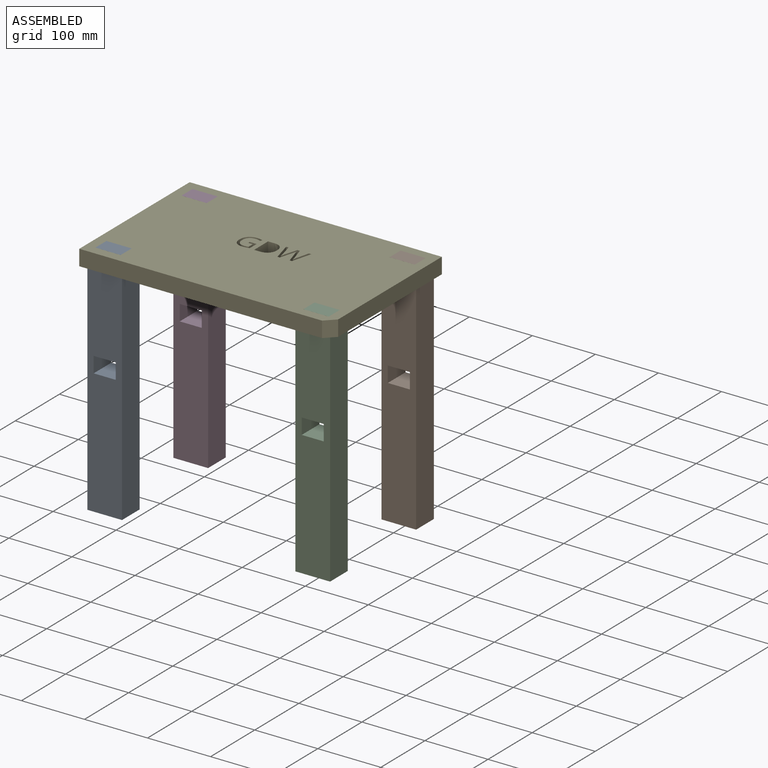
[diagram: assembled view]
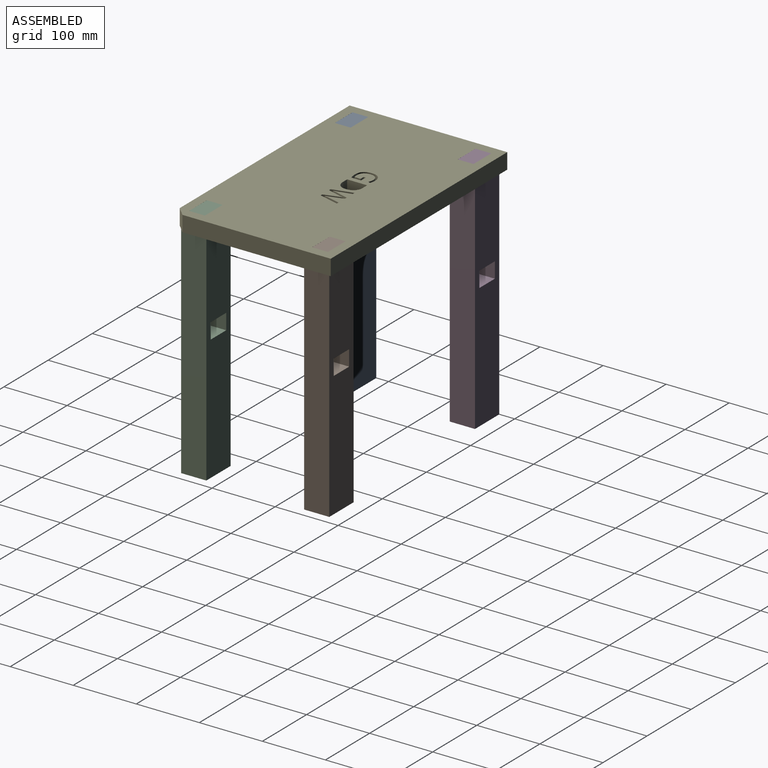
[diagram: assembled view, second angle]
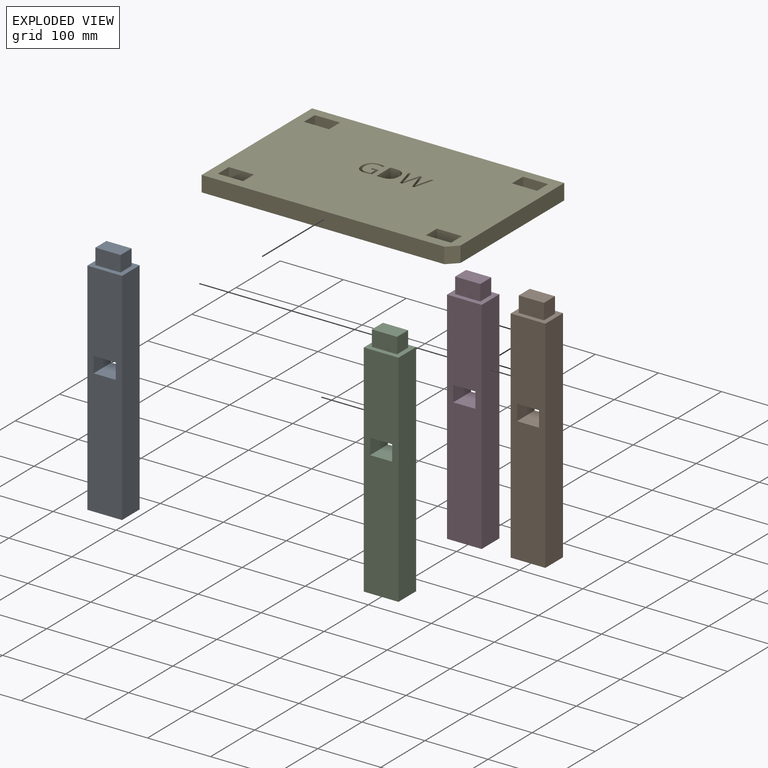
[diagram: exploded view]
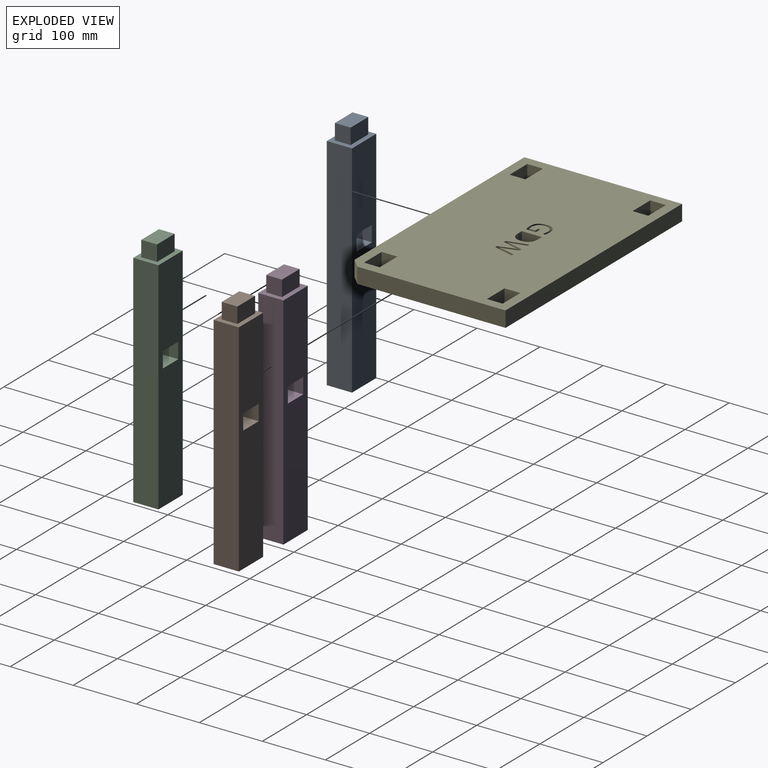
[diagram: exploded view, second angle]
ASSEMBLY  parts=5 mates=4
PART A: 15 faces, bbox 55x40x375 mm
  f0: plane 350x55mm, normal (0,1,0), area 18375mm2, adj f2,f3,f4,f5,f11,f12,f13,f14
  f1: plane 350x55mm, normal (0,-1,0), area 18375mm2, adj f2,f3,f4,f5,f11,f12,f13,f14
  f2: plane 55x40mm, normal (0,0,1), area 1202.8mm2, adj f0,f1,f3,f4,f6,f7,f8,f9
  f3: plane 350x40mm, normal (-1,0,0), area 14000mm2, adj f0,f1,f2,f5
  f4: plane 350x40mm, normal (1,0,0), area 14000mm2, adj f0,f1,f2,f5
  f5: plane 55x40mm, normal (0,0,-1), area 2200mm2, adj f0,f1,f3,f4
  f6: plane 40x25mm, normal (0,1,0), area 1000mm2, adj f2,f7,f9,f10
  f7: plane 25x24.93mm, normal (-1,0,0), area 623.3mm2, adj f2,f6,f8,f10
  f8: plane 40x25mm, normal (0,-1,0), area 1000mm2, adj f2,f7,f9,f10
  f9: plane 25x24.93mm, normal (1,0,0), area 623.3mm2, adj f2,f6,f8,f10
  f10: plane 40x24.93mm, normal (0,0,1), area 997.2mm2, adj f6,f7,f8,f9
  f11: plane 40x35mm, normal (0,0,-1), area 1400mm2, adj f0,f1,f12,f14
  f12: plane 40x25mm, normal (1,0,0), area 1000mm2, adj f0,f1,f11,f13
  f13: plane 40x35mm, normal (0,0,1), area 1400mm2, adj f0,f1,f12,f14
  f14: plane 40x25mm, normal (-1,0,0), area 1000mm2, adj f0,f1,f11,f13
PART B: same geometry as A
PART C: same geometry as A
PART D: same geometry as A
PART E: 70 faces, bbox 400x250x25 mm
  f0: plane 400x25mm, normal (0,1,0), area 10000mm2, adj f1,f66,f67,f68
  f1: plane 250x25mm, normal (-1,0,0), area 6250mm2, adj f0,f2,f67,f68
  f2: plane 385x25mm, normal (0,-1,0), area 9625mm2, adj f1,f67,f68,f69
  f3: plane 25x25mm, normal (1,0,0), area 625mm2, adj f4,f59,f67,f68
  f4: plane 40x25mm, normal (0,-1,0), area 1000mm2, adj f3,f5,f67,f68
  f5: plane 25x25mm, normal (-1,0,0), area 625mm2, adj f4,f59,f67,f68
  f6: plane 25x25mm, normal (1,0,0), area 625mm2, adj f7,f60,f67,f68
  f7: plane 40x25mm, normal (0,-1,0), area 1000mm2, adj f6,f8,f67,f68
  f8: plane 25x25mm, normal (-1,0,0), area 625mm2, adj f7,f60,f67,f68
  f9: plane 25x25mm, normal (1,0,0), area 625mm2, adj f10,f61,f67,f68
  f10: plane 40x25mm, normal (0,-1,0), area 1000mm2, adj f9,f11,f67,f68
  f11: plane 25x25mm, normal (-1,0,0), area 625mm2, adj f10,f61,f67,f68
  f12: plane 25x25mm, normal (1,0,0), area 625mm2, adj f13,f62,f67,f68
  f13: plane 40x25mm, normal (0,-1,0), area 1000mm2, adj f12,f14,f67,f68
  f14: plane 25x25mm, normal (-1,0,0), area 625mm2, adj f13,f62,f67,f68
  f15: plane 31.73x25mm, normal (-0.97,0.26,0), area 821.2mm2, adj f16,f63,f67,f68
  f16: plane 25x3.65mm, normal (0,1,0), area 91.2mm2, adj f15,f17,f67,f68
  f17: plane 25x21.25mm, normal (0.96,0.29,0), area 554.7mm2, adj f16,f18,f67,f68
  f18: extruded ~25x3.56mm, area 92.7mm2, adj f17,f19,f67,f68
  f19: extruded ~25x2.58mm, area 66.3mm2, adj f18,f20,f67,f68
  f20: extruded ~25x6.27mm, area 161.4mm2, adj f19,f21,f67,f68
  f21: plane 25x21.12mm, normal (-0.96,0.28,0), area 550.3mm2, adj f20,f22,f67,f68
  f22: plane 25x3.65mm, normal (0,1,0), area 91.2mm2, adj f21,f23,f67,f68
  f23: plane 31.73x25mm, normal (0.97,0.26,0), area 820.9mm2, adj f22,f24,f67,f68
  f24: plane 25x3.91mm, normal (0,-1,0), area 97.8mm2, adj f23,f25,f67,f68
  f25: plane 25x19.6mm, normal (-0.97,-0.25,0), area 505.8mm2, adj f24,f26,f67,f68
  f26: extruded ~25x7.47mm, area 190.6mm2, adj f25,f27,f67,f68
  f27: extruded ~25x7.77mm, area 199.3mm2, adj f26,f28,f67,f68
  f28: plane 25x19.29mm, normal (0.96,-0.28,0), area 502.8mm2, adj f27,f29,f67,f68
  f29: plane 25x3.91mm, normal (0,-1,0), area 97.8mm2, adj f28,f30,f67,f68
  f30: plane 25x19.47mm, normal (-0.96,-0.29,0), area 509mm2, adj f29,f31,f67,f68
  f31: extruded ~25x7.6mm, area 195.1mm2, adj f30,f32,f67,f68
  f32: extruded ~25x7.51mm, area 191.8mm2, adj f31,f33,f67,f68
  f33: plane 25x19.56mm, normal (0.97,-0.25,0), area 504.6mm2, adj f32,f63,f67,f68
  f34: extruded ~25x11.46mm, area 312.7mm2, adj f35,f64,f67,f68
  f35: extruded ~25x12.01mm, area 327.6mm2, adj f34,f36,f67,f68
  f36: extruded ~25x12.27mm, area 332.3mm2, adj f35,f37,f67,f68
  f37: plane 25x8.79mm, normal (0,1,0), area 219.8mm2, adj f36,f38,f67,f68
  f38: plane 31.73x25mm, normal (1,0,0), area 793.3mm2, adj f37,f39,f67,f68
  f39: plane 25x9.72mm, normal (0,-1,0), area 243.1mm2, adj f38,f64,f67,f68
  f40: plane 25x3.3mm, normal (1,0,0), area 82.5mm2, adj f41,f65,f67,f68
  f41: plane 25x10.79mm, normal (0,-1,0), area 269.6mm2, adj f40,f42,f67,f68
  f42: plane 25x15.43mm, normal (-1,0,0), area 385.8mm2, adj f41,f43,f67,f68
  f43: extruded ~25x5.13mm, area 131.8mm2, adj f42,f44,f67,f68
  f44: extruded ~25x6.04mm, area 151.4mm2, adj f43,f45,f67,f68
  f45: extruded ~25x11.22mm, area 309.2mm2, adj f44,f46,f67,f68
  f46: extruded ~25x12.01mm, area 324.4mm2, adj f45,f47,f67,f68
  f47: extruded ~25x8.67mm, area 224.8mm2, adj f46,f48,f67,f68
  f48: extruded ~25x5.72mm, area 204.7mm2, adj f47,f49,f67,f68
  f49: extruded ~25x8.74mm, area 226.2mm2, adj f48,f50,f67,f68
  f50: extruded ~25x9.47mm, area 242.8mm2, adj f49,f51,f67,f68
  f51: plane 25x3.26mm, normal (-0.92,0.4,0), area 88.9mm2, adj f50,f52,f67,f68
  f52: extruded ~25x8.27mm, area 213.2mm2, adj f51,f53,f67,f68
  f53: extruded ~25x9.05mm, area 249.3mm2, adj f52,f54,f67,f68
  f54: extruded ~25x9.57mm, area 259.2mm2, adj f53,f55,f67,f68
  f55: extruded ~25x9.74mm, area 262.2mm2, adj f54,f56,f67,f68
  f56: extruded ~25x9.21mm, area 252mm2, adj f55,f57,f67,f68
  f57: extruded ~25x6.45mm, area 162.6mm2, adj f56,f58,f67,f68
  f58: plane 25x9.77mm, normal (1,0,0), area 244.1mm2, adj f57,f65,f67,f68
  f59: plane 40x25mm, normal (0,1,0), area 1000mm2, adj f3,f5,f67,f68
  f60: plane 40x25mm, normal (0,1,0), area 1000mm2, adj f6,f8,f67,f68
  f61: plane 40x25mm, normal (0,1,0), area 1000mm2, adj f9,f11,f67,f68
  f62: plane 40x25mm, normal (0,1,0), area 1000mm2, adj f12,f14,f67,f68
  f63: plane 25x3.91mm, normal (0,-1,0), area 97.8mm2, adj f15,f33,f67,f68
  f64: extruded ~25x11.5mm, area 313.7mm2, adj f34,f39,f67,f68
  f65: plane 25x7.09mm, normal (0,1,0), area 177.3mm2, adj f40,f58,f67,f68
  f66: plane 235x25mm, normal (1,0,0), area 5875mm2, adj f0,f67,f68,f69
  f67: plane 400x250mm, normal (0,0,1), area 94439.8mm2, adj f0,f1,f2,f3,f4,f5,f6,f7
  f68: plane 400x250mm, normal (0,0,-1), area 94439.8mm2, adj f0,f1,f2,f3,f4,f5,f6,f7
  f69: plane 25x15mm, normal (0.71,-0.71,0), area 530.3mm2, adj f2,f66,f67,f68
PLACE A t=(46.87,39.25,-335.03)mm
PLACE B t=(376.87,234.25,-335.03)mm
PLACE C t=(376.87,39.25,-335.03)mm
PLACE D t=(46.87,234.25,-335.03)mm
PLACE E t=(17.55,26.07,14.97)mm
MATE fastened B.f10 <-> E.f67  axis (0,0,1) through (388.96,246.07,39.97)mm
MATE fastened C.f10 <-> E.f67  axis (0,0,1) through (388.96,51.07,39.97)mm
MATE fastened D.f10 <-> E.f67  axis (0,0,1) through (58.96,246.07,39.97)mm
MATE fastened A.f10 <-> E.f67  axis (0,0,1) through (58.96,51.07,39.97)mm
